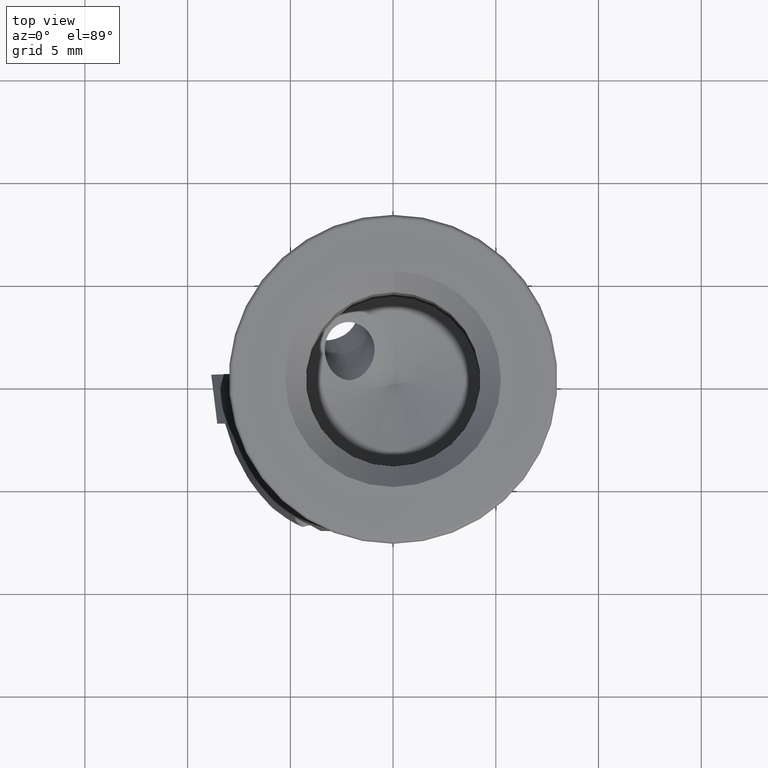
[diagram: clean part render]
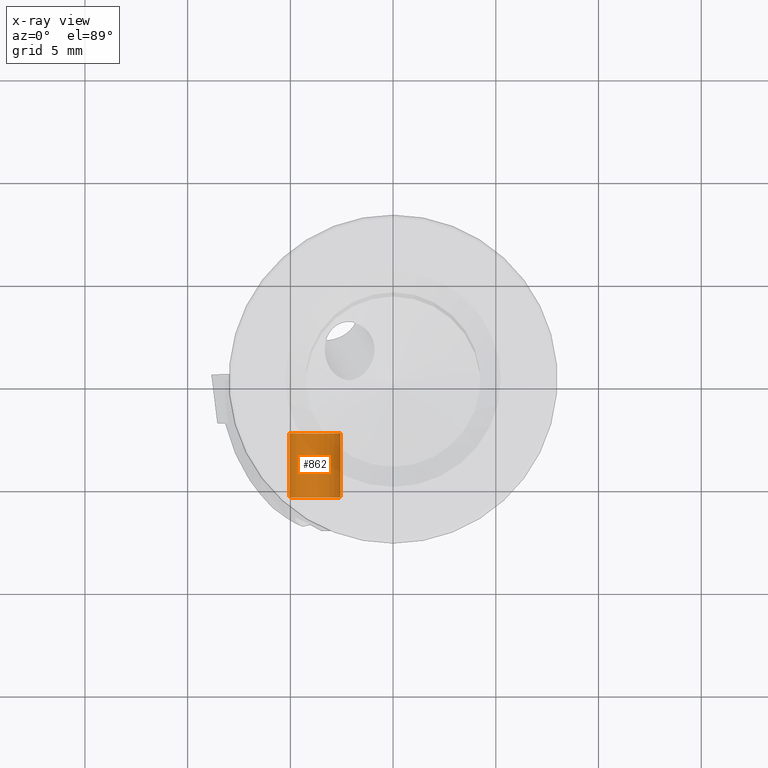
[diagram: x-ray — body ghosted, one internal face saturated and labeled with its STEP entity id]
A machine part, top view, then the same camera in x-ray: the body is ghosted and one INTERNAL B-rep face — a face not visible from any outside direction — is saturated and labeled: STEP entity #862.
In plain terms, the highlighted cylindrical surface (edge-blend (fillet) strip) has radius 1.25 mm, axis along (-0, 1, -0).
Its self-contained STEP definition (entity closure, byte-faithful):
#824=EDGE_CURVE('NONE',#1692,#1302,#2148,.T.);
#862=ADVANCED_FACE('NONE',(#2188),#2189,.T.);
#1020=VERTEX_POINT('NONE',#2361);
#1268=EDGE_CURVE('NONE',#1302,#1020,#2640,.T.);
#1302=VERTEX_POINT('NONE',#2683);
#1458=VERTEX_POINT('NONE',#2857);
#1546=EDGE_CURVE('NONE',#1458,#1020,#2955,.T.);
#1636=EDGE_CURVE('NONE',#1692,#1458,#3056,.T.);
#1692=VERTEX_POINT('NONE',#3119);
#2148=CIRCLE('',#3680,1.25);
#2188=FACE_OUTER_BOUND('',#3748,.T.);
#2189=CYLINDRICAL_SURFACE('',#3749,1.25);
#2361=CARTESIAN_POINT('',(-5.05375210299888,-2.22,-23.4174726344393));
#2640=LINE('',#5121,#5122);
#2683=CARTESIAN_POINT('',(-5.05375210299888,-5.34499999999999,-23.4174726344393));
#2857=CARTESIAN_POINT('',(-2.55375210299888,-2.22,-23.4174726344393));
#2955=CIRCLE('',#5690,1.25);
#3056=LINE('',#5891,#5892);
#3119=CARTESIAN_POINT('',(-2.55375210299888,-5.34499999999999,-23.4174726344393));
#3680=AXIS2_PLACEMENT_3D('',#7141,#7142,#7143);
#3748=EDGE_LOOP('',(#7180,#7181,#7182,#7183));
#3749=AXIS2_PLACEMENT_3D('',#7184,#7185,#7186);
#5121=CARTESIAN_POINT('',(-5.05375210299888,1.72242507433892,-23.4174726344393));
#5122=VECTOR('',#7713,1000.0);
#5690=AXIS2_PLACEMENT_3D('',#8135,#8136,#8137);
#5891=CARTESIAN_POINT('',(-2.55375210299888,1.72242507433892,-23.4174726344393));
#5892=VECTOR('',#8276,1000.0);
#7141=CARTESIAN_POINT('',(-3.80375210299888,-5.34499999999999,-23.4174726344393));
#7142=DIRECTION('',(0.0,1.0,0.0));
#7143=DIRECTION('',(1.0,0.0,-1.22464679914735E-016));
#7180=ORIENTED_EDGE('',*,*,#824,.T.);
#7181=ORIENTED_EDGE('',*,*,#1268,.T.);
#7182=ORIENTED_EDGE('',*,*,#1546,.F.);
#7183=ORIENTED_EDGE('',*,*,#1636,.F.);
#7184=CARTESIAN_POINT('',(-3.80375210299888,1.72242507433892,-23.4174726344393));
#7185=DIRECTION('',(-0.0,1.0,-0.0));
#7186=DIRECTION('',(1.0,0.0,-1.22464679914735E-016));
#7713=DIRECTION('',(0.0,1.0,0.0));
#8135=CARTESIAN_POINT('',(-3.80375210299888,-2.22,-23.4174726344393));
#8136=DIRECTION('',(0.0,1.0,0.0));
#8137=DIRECTION('',(1.0,0.0,-1.22464679914735E-016));
#8276=DIRECTION('',(0.0,1.0,0.0));